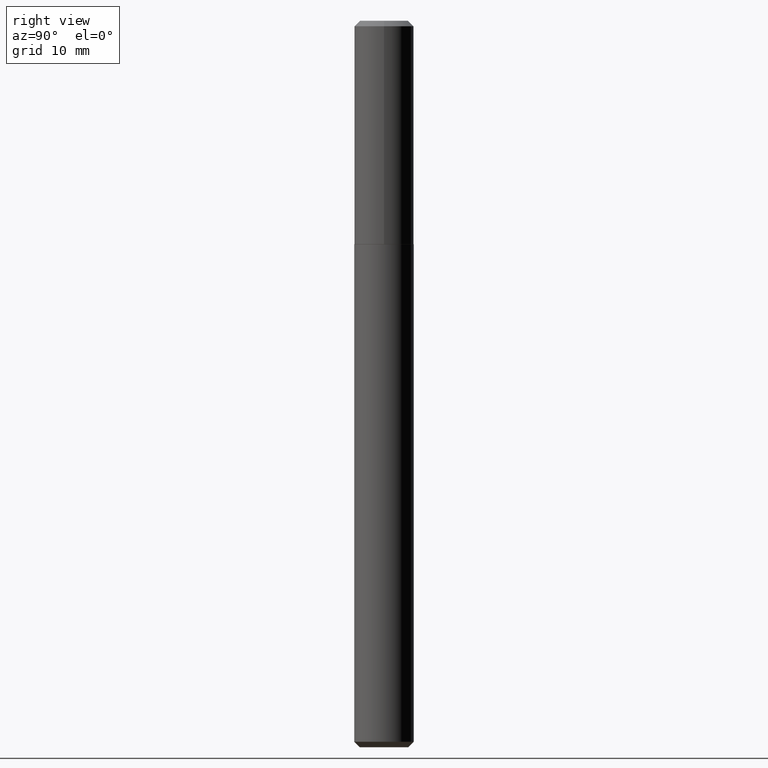
[diagram: clean part render]
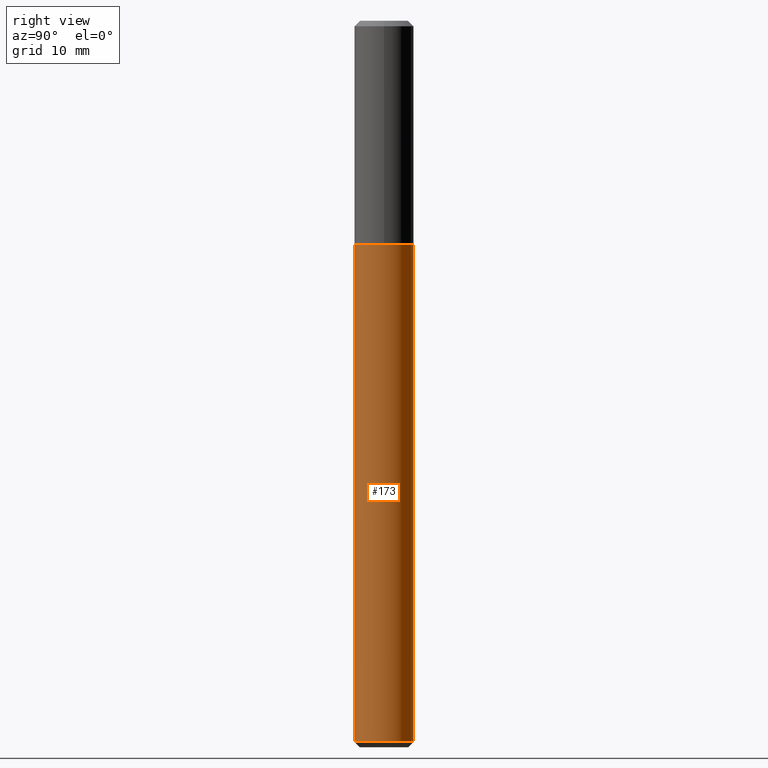
[diagram: same view with one face highlighted and labeled with its STEP entity id]
A machine part, right view. The second image highlights one B-rep face of the part: STEP entity #173.
In plain terms, the highlighted cylindrical surface (edge-blend (fillet) strip) has radius 3.3731 mm, axis along (-0, 0, 1).
Its self-contained STEP definition (entity closure, byte-faithful):
#3 = ORIENTED_EDGE ( 'NONE', *, *, #30, .T. ) ;
#7 = LINE ( 'NONE', #230, #112 ) ;
#11 = DIRECTION ( 'NONE',  ( -6.982962677686265133E-15, -1.000000000000000000, 3.085671679590658892E-15 ) ) ;
#22 = CYLINDRICAL_SURFACE ( 'NONE', #387, 0.1328000000000000014 ) ;
#25 = CIRCLE ( 'NONE', #273, 0.1328000000000000014 ) ;
#30 = EDGE_CURVE ( 'NONE', #369, #306, #257, .T. ) ;
#55 = AXIS2_PLACEMENT_3D ( 'NONE', #248, #78, #339 ) ;
#61 = LINE ( 'NONE', #115, #116 ) ;
#62 = EDGE_CURVE ( 'NONE', #309, #71, #25, .T. ) ;
#71 = VERTEX_POINT ( 'NONE', #148 ) ;
#78 = DIRECTION ( 'NONE',  ( -2.445778796490868869E-29, 3.491037415081784460E-15, 1.000000000000000000 ) ) ;
#108 = EDGE_CURVE ( 'NONE', #369, #309, #61, .T. ) ;
#110 = EDGE_LOOP ( 'NONE', ( #3, #138, #231, #206 ) ) ;
#112 = VECTOR ( 'NONE', #131, 39.37007874015748143 ) ;
#115 = CARTESIAN_POINT ( 'NONE',  ( -9.273374435967115704E-16, -0.1328000000000034708, -0.9999999999999998890 ) ) ;
#116 = VECTOR ( 'NONE', #316, 39.37007874015748143 ) ;
#131 = DIRECTION ( 'NONE',  ( -2.445778796490868588E-29, 3.491037415081784460E-15, 1.000000000000000000 ) ) ;
#138 = ORIENTED_EDGE ( 'NONE', *, *, #377, .T. ) ;
#148 = CARTESIAN_POINT ( 'NONE',  ( 9.436007530894919427E-16, 0.1327999999999965042, -1.000000000000000888 ) ) ;
#169 = DIRECTION ( 'NONE',  ( -2.445778796490868869E-29, 3.491037415081784460E-15, 1.000000000000000000 ) ) ;
#173 = ADVANCED_FACE ( 'NONE', ( #354 ), #22, .T. ) ;
#193 = CARTESIAN_POINT ( 'NONE',  ( 2.445468806185137438E-29, -3.491481338843146371E-15, -1.000000000000000222 ) ) ;
#205 = CARTESIAN_POINT ( 'NONE',  ( 9.436007530894923371E-16, 0.1327999999999888436, -3.225000000000000089 ) ) ;
#206 = ORIENTED_EDGE ( 'NONE', *, *, #108, .F. ) ;
#219 = DIRECTION ( 'NONE',  ( -6.982962677686265133E-15, -1.000000000000000000, 3.085671679590658892E-15 ) ) ;
#230 = CARTESIAN_POINT ( 'NONE',  ( 9.436007530894375113E-16, 0.1327999999999965042, -1.000000000000000666 ) ) ;
#231 = ORIENTED_EDGE ( 'NONE', *, *, #62, .F. ) ;
#232 = CARTESIAN_POINT ( 'NONE',  ( -9.273374435966567446E-16, -0.1328000000000111591, -3.224999999999999201 ) ) ;
#248 = CARTESIAN_POINT ( 'NONE',  ( 7.887326628377317868E-29, -1.125903958740011493E-14, -3.224999999999999645 ) ) ;
#251 = DIRECTION ( 'NONE',  ( -2.445778796490868869E-29, 3.491037415081784460E-15, 1.000000000000000000 ) ) ;
#257 = CIRCLE ( 'NONE', #55, 0.1328000000000000014 ) ;
#270 = CARTESIAN_POINT ( 'NONE',  ( 2.445468806185137998E-29, -3.491481338843147555E-15, -1.000000000000000444 ) ) ;
#273 = AXIS2_PLACEMENT_3D ( 'NONE', #270, #169, #11 ) ;
#306 = VERTEX_POINT ( 'NONE', #205 ) ;
#309 = VERTEX_POINT ( 'NONE', #388 ) ;
#316 = DIRECTION ( 'NONE',  ( -2.445778796490868588E-29, 3.491037415081784460E-15, 1.000000000000000000 ) ) ;
#339 = DIRECTION ( 'NONE',  ( -6.982962677686265133E-15, -1.000000000000000000, 4.114228906120878260E-15 ) ) ;
#354 = FACE_OUTER_BOUND ( 'NONE', #110, .T. ) ;
#369 = VERTEX_POINT ( 'NONE', #232 ) ;
#377 = EDGE_CURVE ( 'NONE', #306, #71, #7, .T. ) ;
#387 = AXIS2_PLACEMENT_3D ( 'NONE', #193, #251, #219 ) ;
#388 = CARTESIAN_POINT ( 'NONE',  ( -9.273374435967115704E-16, -0.1328000000000034708, -1.000000000000000222 ) ) ;